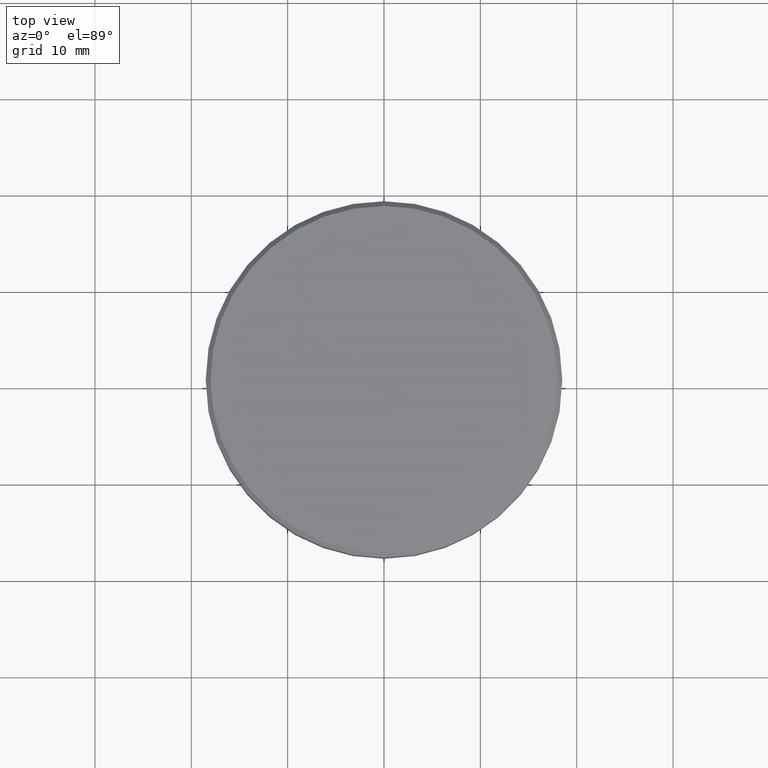
[diagram: clean part render]
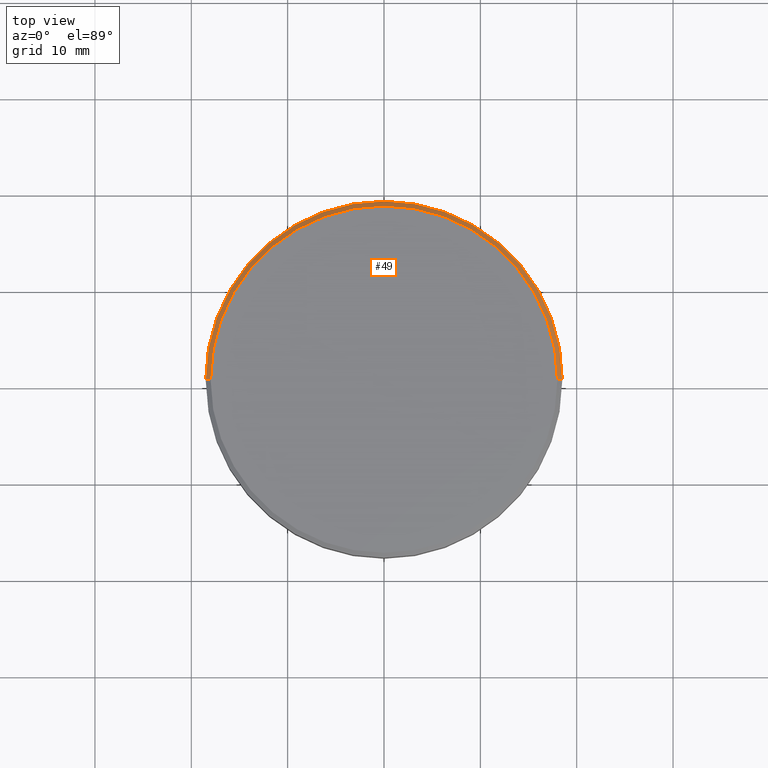
[diagram: same view with one face highlighted and labeled with its STEP entity id]
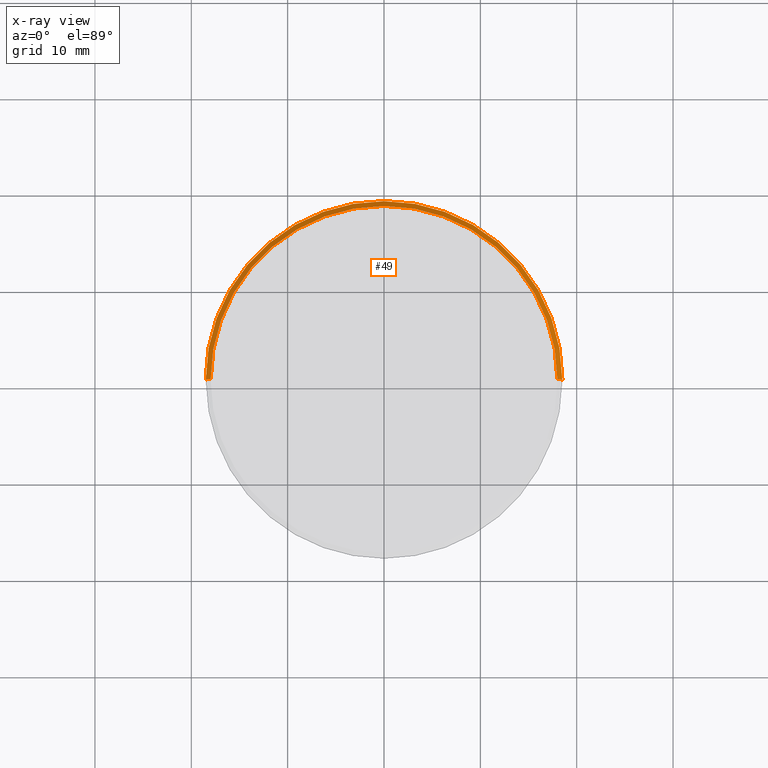
[diagram: x-ray of the same camera — body ghosted, the highlighted face saturated]
A machine part, top view. The second image highlights one B-rep face of the part: STEP entity #49.
The next image is the same camera in x-ray: the body ghosted, the highlighted face saturated — about 0% of this face is hidden behind the body in this view.
In plain terms, the highlighted conical surface has half-angle 45 deg.
Its self-contained STEP definition (entity closure, byte-faithful):
#25 = DIRECTION ( 'NONE',  ( 1.000000000000000000, 0.000000000000000000, 0.000000000000000000 ) ) ;
#27 = CONICAL_SURFACE ( 'NONE', #258, 17.99999999999998224, 0.7853981633974517207 ) ;
#33 = DIRECTION ( 'NONE',  ( -1.000000000000000000, 0.000000000000000000, 0.000000000000000000 ) ) ;
#43 = CARTESIAN_POINT ( 'NONE',  ( -17.99999999999998224, 0.000000000000000000, 0.000000000000000000 ) ) ;
#49 = ADVANCED_FACE ( 'NONE', ( #127 ), #27, .T. ) ;
#66 = CARTESIAN_POINT ( 'NONE',  ( 17.99999999999998224, 2.234980408443918426E-15, 0.000000000000000000 ) ) ;
#69 = CARTESIAN_POINT ( 'NONE',  ( 17.99999999999998224, 2.204364238465233456E-15, 0.000000000000000000 ) ) ;
#85 = VERTEX_POINT ( 'NONE', #43 ) ;
#91 = CIRCLE ( 'NONE', #331, 18.50000000000000000 ) ;
#95 = DIRECTION ( 'NONE',  ( 0.000000000000000000, 0.000000000000000000, -1.000000000000000000 ) ) ;
#102 = EDGE_CURVE ( 'NONE', #407, #338, #91, .T. ) ;
#105 = LINE ( 'NONE', #349, #298 ) ;
#127 = FACE_OUTER_BOUND ( 'NONE', #255, .T. ) ;
#139 = DIRECTION ( 'NONE',  ( -0.000000000000000000, -0.000000000000000000, 1.000000000000000000 ) ) ;
#165 = DIRECTION ( 'NONE',  ( 0.000000000000000000, 0.000000000000000000, -1.000000000000000000 ) ) ;
#189 = CARTESIAN_POINT ( 'NONE',  ( 0.000000000000000000, 0.000000000000000000, -0.5000000000000143219 ) ) ;
#195 = ORIENTED_EDGE ( 'NONE', *, *, #324, .F. ) ;
#199 = DIRECTION ( 'NONE',  ( 0.7071067811865500152, 8.659560562354962440E-17, -0.7071067811865451302 ) ) ;
#201 = DIRECTION ( 'NONE',  ( 1.000000000000000000, 0.000000000000000000, 0.000000000000000000 ) ) ;
#221 = CARTESIAN_POINT ( 'NONE',  ( 0.000000000000000000, 0.000000000000000000, 0.000000000000000000 ) ) ;
#223 = CARTESIAN_POINT ( 'NONE',  ( 18.50000000000000000, 0.000000000000000000, -0.5000000000000143219 ) ) ;
#228 = ORIENTED_EDGE ( 'NONE', *, *, #102, .F. ) ;
#255 = EDGE_LOOP ( 'NONE', ( #195, #372, #228, #299 ) ) ;
#258 = AXIS2_PLACEMENT_3D ( 'NONE', #221, #95, #33 ) ;
#274 = VECTOR ( 'NONE', #199, 1000.000000000000114 ) ;
#297 = DIRECTION ( 'NONE',  ( -0.7071067811865500152, 0.000000000000000000, -0.7071067811865451302 ) ) ;
#298 = VECTOR ( 'NONE', #297, 1000.000000000000114 ) ;
#299 = ORIENTED_EDGE ( 'NONE', *, *, #316, .F. ) ;
#316 = EDGE_CURVE ( 'NONE', #85, #407, #105, .T. ) ;
#324 = EDGE_CURVE ( 'NONE', #345, #85, #405, .T. ) ;
#331 = AXIS2_PLACEMENT_3D ( 'NONE', #189, #165, #25 ) ;
#336 = AXIS2_PLACEMENT_3D ( 'NONE', #379, #139, #201 ) ;
#338 = VERTEX_POINT ( 'NONE', #223 ) ;
#339 = CARTESIAN_POINT ( 'NONE',  ( -18.50000000000000000, 2.265596578422603396E-15, -0.5000000000000143219 ) ) ;
#345 = VERTEX_POINT ( 'NONE', #66 ) ;
#349 = CARTESIAN_POINT ( 'NONE',  ( -17.99999999999998224, 0.000000000000000000, 0.000000000000000000 ) ) ;
#353 = LINE ( 'NONE', #69, #274 ) ;
#359 = EDGE_CURVE ( 'NONE', #345, #338, #353, .T. ) ;
#372 = ORIENTED_EDGE ( 'NONE', *, *, #359, .T. ) ;
#379 = CARTESIAN_POINT ( 'NONE',  ( 0.000000000000000000, 0.000000000000000000, 0.000000000000000000 ) ) ;
#405 = CIRCLE ( 'NONE', #336, 17.99999999999998224 ) ;
#407 = VERTEX_POINT ( 'NONE', #339 ) ;